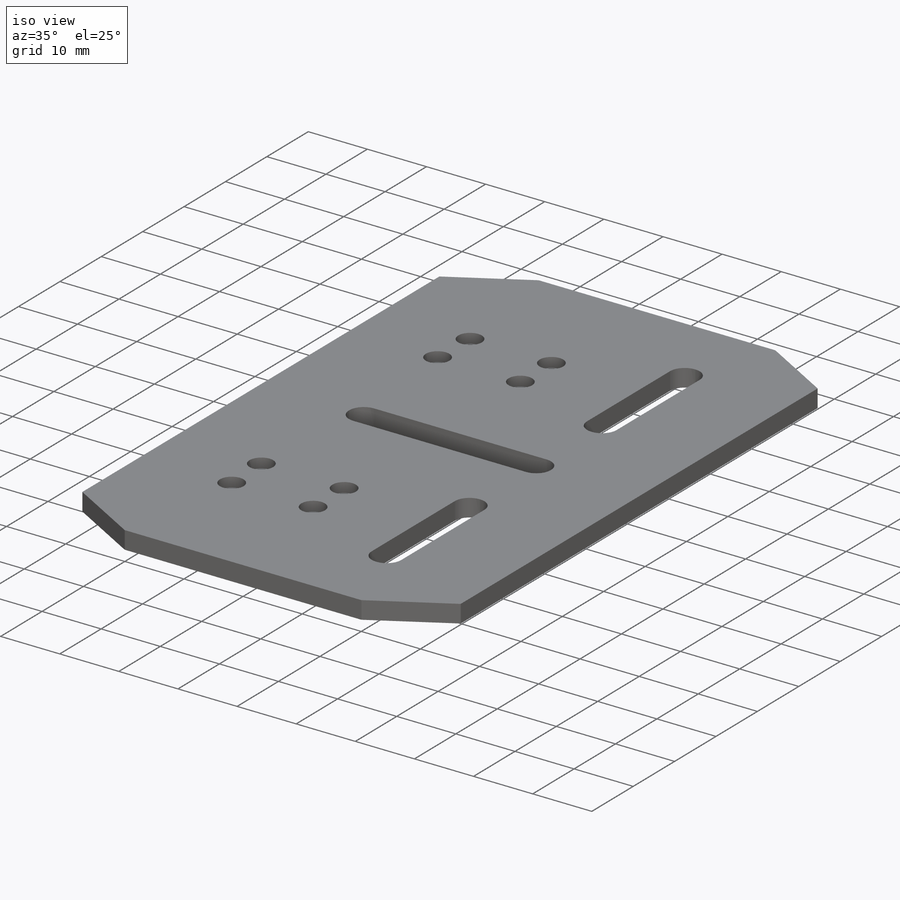
[diagram: iso view]
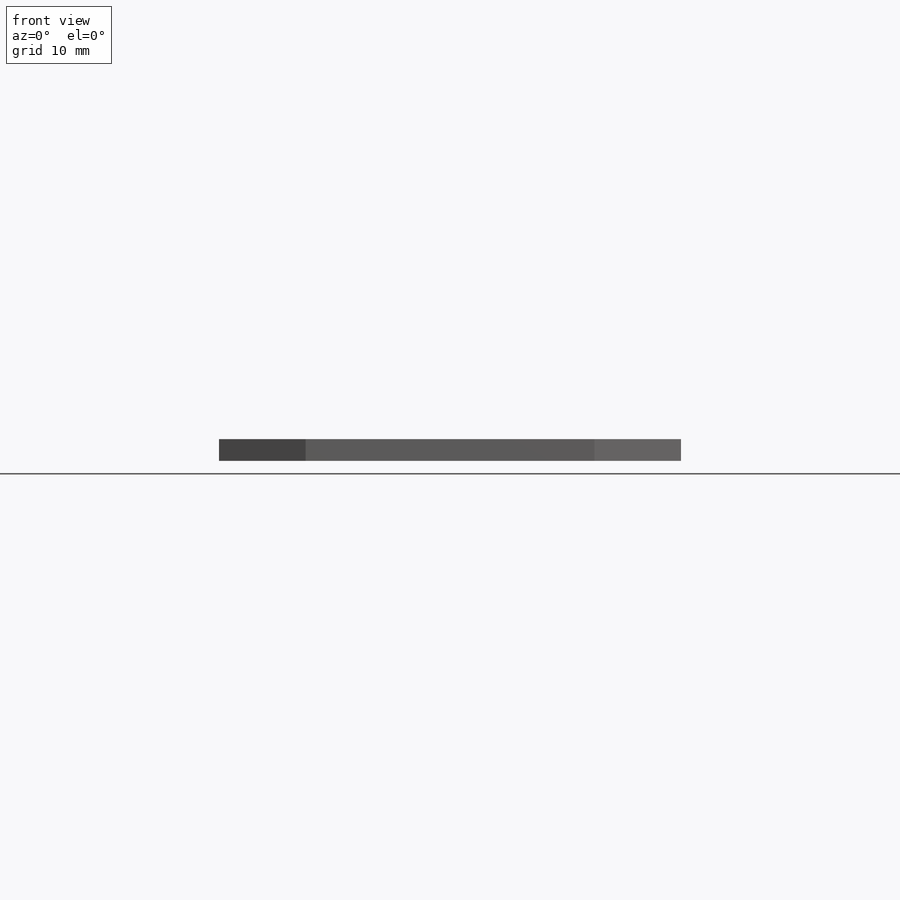
[diagram: front view]
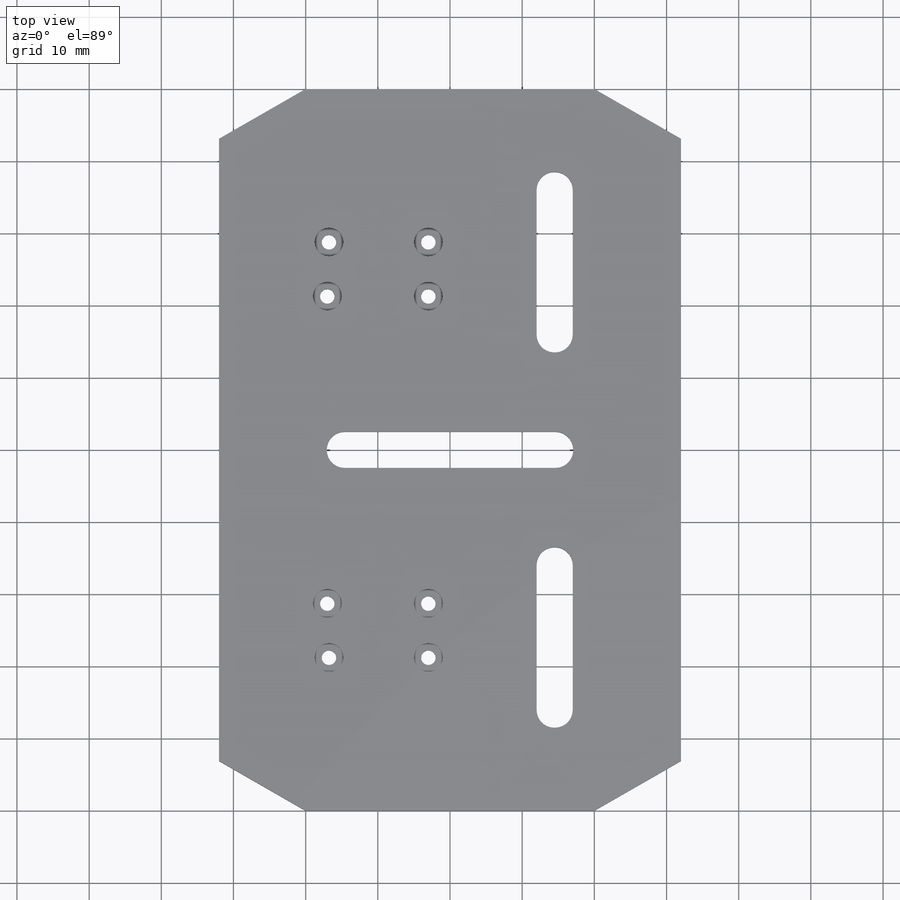
[diagram: top view]
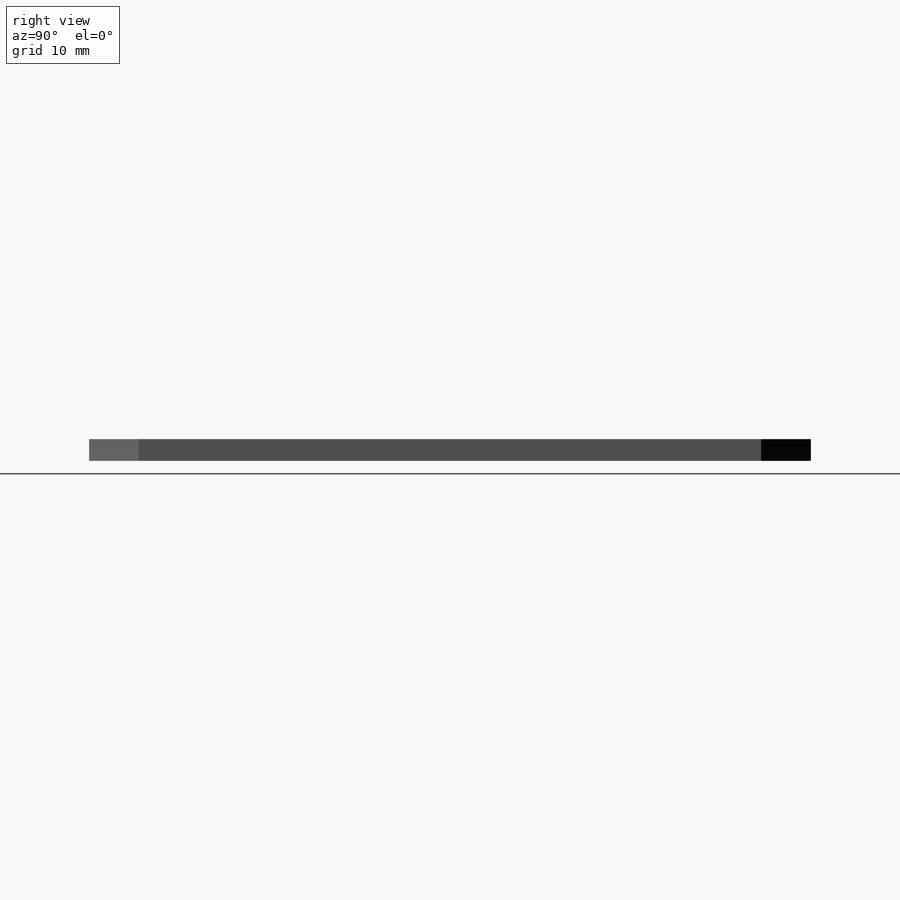
[diagram: right view]
SOLIDWORKS PART (.sldprt)
format: sldprt  version: not decoded by parser v0  size: 311,296 bytes
history: native  units: mm
features: sketch x4, cut_extrude x3, plane x2, material x1, extrude x1, mirror x1 (+12 scaffold rows collapsed)
feature tree (24):
  scaffold x12  (default folders/planes/origin — collapsed)
  material  "Custom Plastic"
  sketch  "Sketch1"  dims[c1.D1=66.0mm c1.D2=104.0mm c2.D1=64.0mm c2.D2=100.0mm]
  extrude  "Boss-Extrude1"  Depth=3mm
  sketch  "Sketch5"  dims[D7=2.45mm D1=5.0mm D2=26.0mm D3=26.0mm D4=5.0mm D5=25.0mm D6=15.0mm]
  cut_extrude  "Cut-Extrude2"  Depth=10mm
  sketch  "Sketch7"  dims[c1.D5=2.0mm c1.D1=7.5mm c1.D2=7.0mm c1.D3=14.0mm c1.D4=3.75mm c2.D5=4.0mm c2.D6=28.0mm c2.D7=8.0mm c2.D8=14.0mm c2.D9=14.0mm c2.D10=7.5mm c2.D11=7.5mm c2.D12=7.0mm c2.D13=7.0mm]
  plane  "Plane1"
  cut_extrude  "Cut-Extrude3"  Depth=11.5mm
  plane  "Plane2"
  mirror  "Mirror1"
  sketch  "Sketch8"  dims[D1=4.0mm D2=4.0mm D3=4.0mm D4=4.0mm D5=4.0mm D6=4.0mm D7=4.0mm D8=4.0mm]
  cut_extrude  "Cut-Extrude4"  Depth=1.65mm
decode coverage: 8 of 9 modeling features carry decoded parameters
note: suppression state not decoded; provenance and decode notes live in map.json
